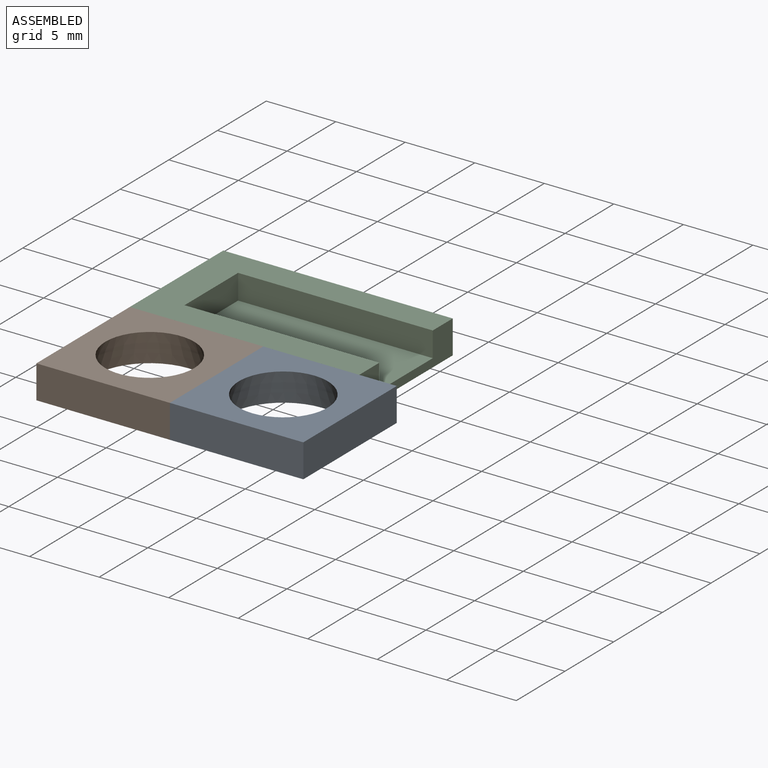
[diagram: assembled view]
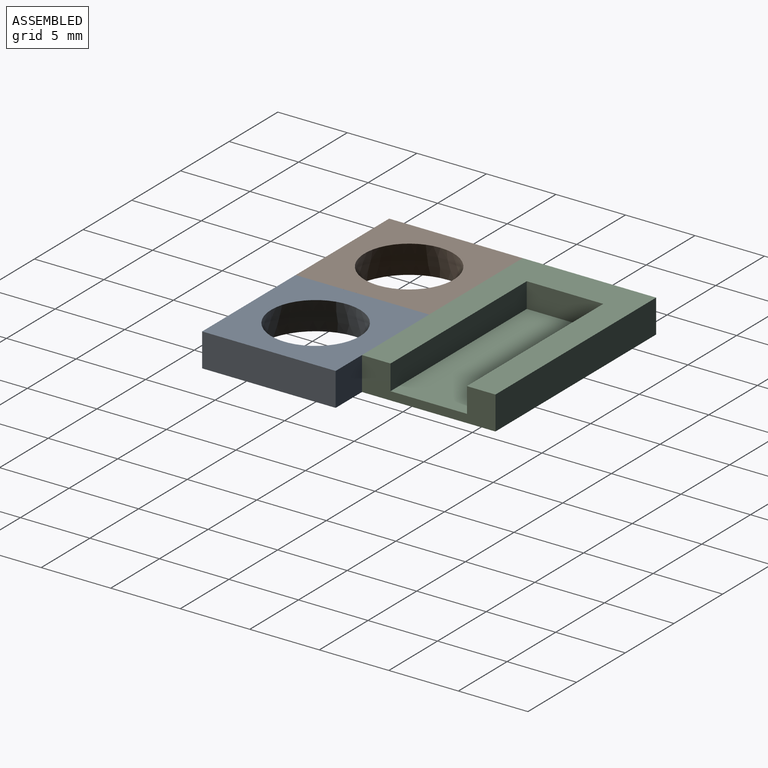
[diagram: assembled view, second angle]
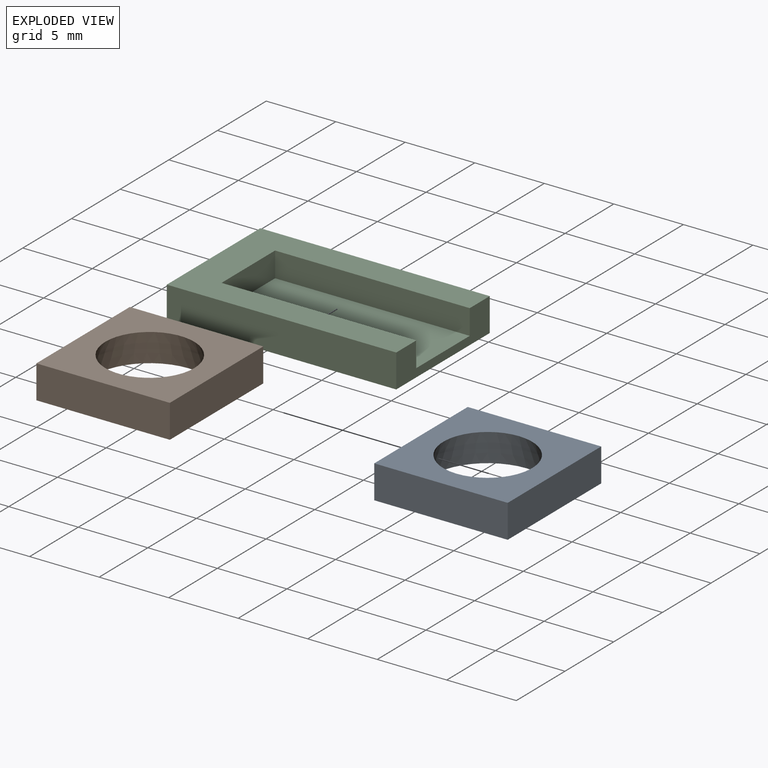
[diagram: exploded view]
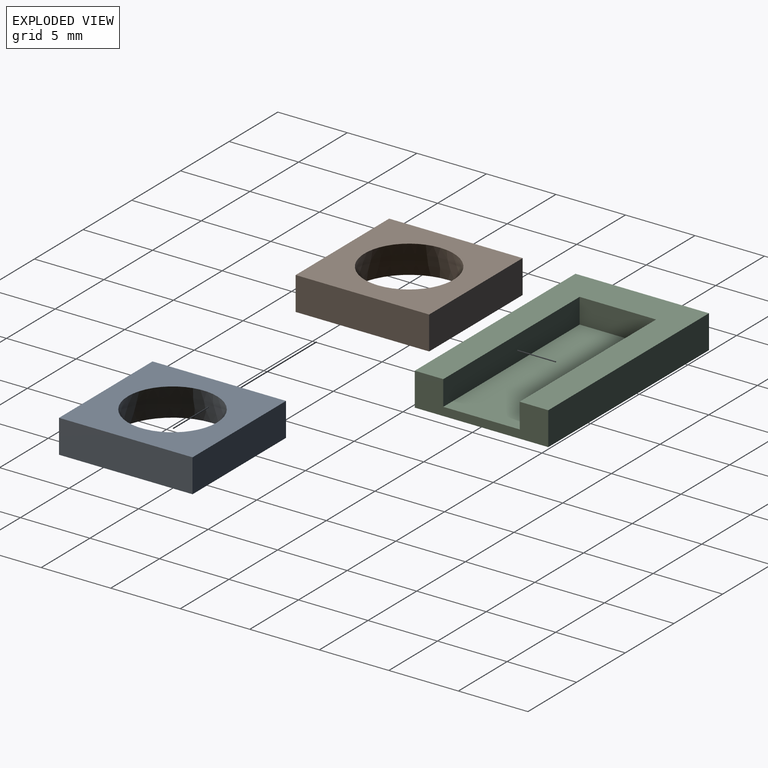
[diagram: exploded view, second angle]
ASSEMBLY  parts=3 mates=2
PART A: 7 faces, bbox 9.6x9.6x2.4 mm
  f0: plane 9.6x9.6mm, normal (0,0,1), area 41.9mm2, adj f2,f3,f4,f5,f6
  f1: plane 9.6x9.6mm, normal (0,0,-1), area 60mm2, adj f2,f3,f4,f5,f6
  f2: cone r=3.2mm half-angle=18.4deg, axis (0,0,1), area 57.2mm2, adj f0,f1
  f3: plane 9.6x2.4mm, normal (0,1,0), area 23mm2, adj f0,f1,f4,f5
  f4: plane 9.6x2.4mm, normal (-1,0,0), area 23mm2, adj f0,f1,f3,f6
  f5: plane 9.6x2.4mm, normal (1,0,0), area 23mm2, adj f0,f1,f3,f6
  f6: plane 9.6x2.4mm, normal (0,-1,0), area 23mm2, adj f0,f1,f4,f5
PART B: same geometry as A
PART C: 10 faces, bbox 2.4x9.6x16.5 mm
  f0: plane 9.6x2.4mm, normal (0,0,-1), area 13.1mm2, adj f1,f2,f3,f4,f6,f8,f9
  f1: plane 14x5.5mm, normal (1,0,0), area 77mm2, adj f0,f3,f4,f5
  f2: plane 16.5x9.6mm, normal (-1,0,0), area 158.4mm2, adj f0,f6,f7,f8
  f3: plane 14x1.8mm, normal (0,-1,0), area 25.2mm2, adj f0,f1,f5,f9
  f4: plane 14x1.8mm, normal (0,1,0), area 25.2mm2, adj f0,f1,f5,f9
  f5: plane 5.5x1.8mm, normal (0,0,-1), area 9.9mm2, adj f1,f3,f4,f9
  f6: plane 16.5x2.4mm, normal (0,-1,0), area 39.6mm2, adj f0,f2,f7,f9
  f7: plane 9.6x2.4mm, normal (0,0,1), area 23mm2, adj f2,f6,f8,f9
  f8: plane 16.5x2.4mm, normal (0,1,0), area 39.6mm2, adj f0,f2,f7,f9
  f9: plane 16.5x9.6mm, normal (1,0,0), area 81.4mm2, adj f0,f3,f4,f5,f6,f7,f8
PLACE A rot(axis=(0.71,0.71,0),180deg) t=(-29.26,-2.85,12.92)mm
PLACE B rot(axis=(1,0,0),180deg) t=(-6.86,29.15,12.92)mm
PLACE C rot(axis=(0,-1,0),90deg) t=(9.84,31.75,14.02)mm
MATE fastened A.f6 <-> B.f5  axis (-1,0,0) through (-2.06,-2.85,11.72)mm
MATE fastened B.f6 <-> C.f6  axis (0,1,0) through (-11.66,1.95,11.72)mm
